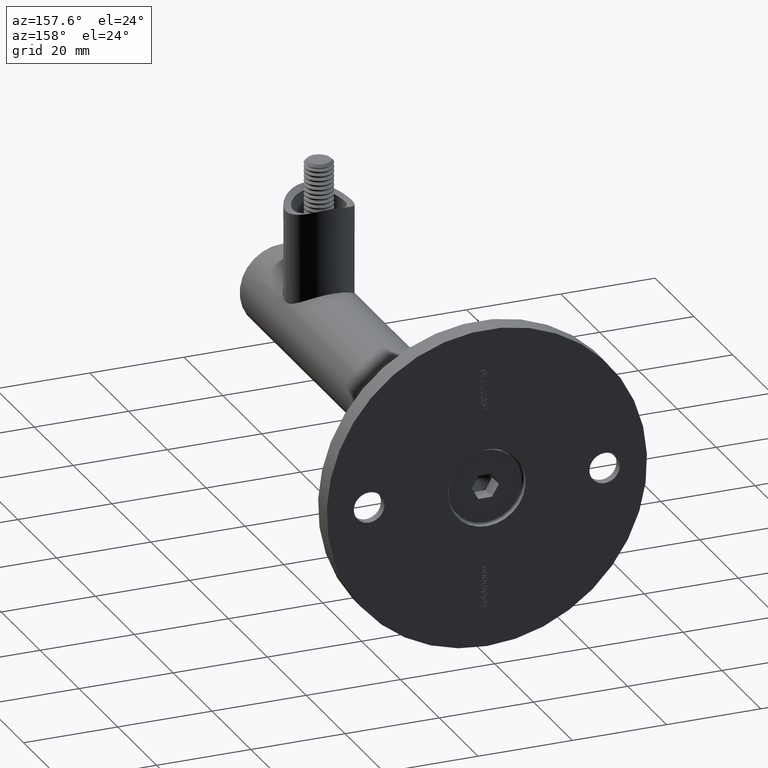
[diagram: clean part render]
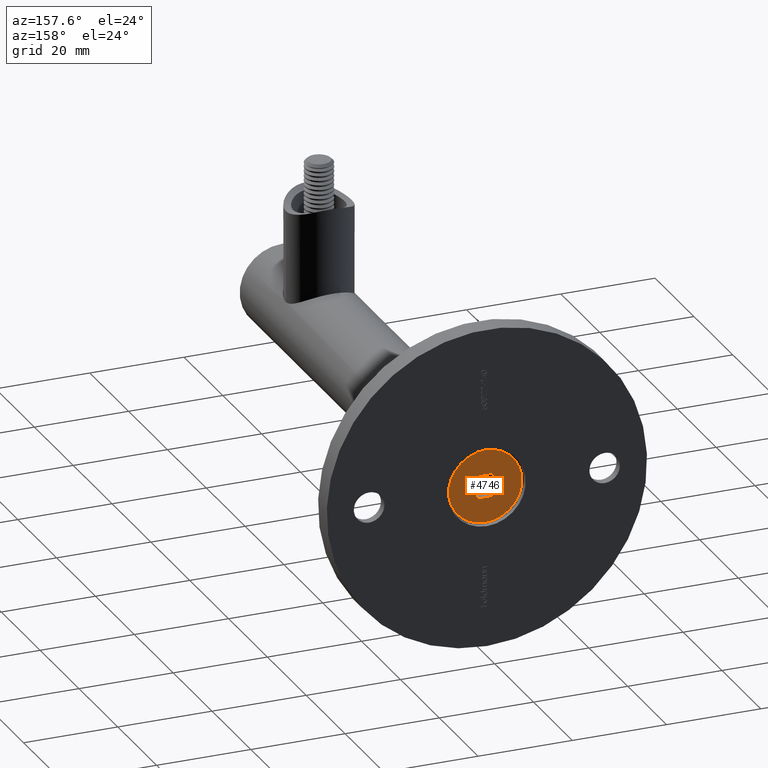
[diagram: same view with one face highlighted and labeled with its STEP entity id]
A machine part, auxiliary view. The second image highlights one B-rep face of the part: STEP entity #4746.
In plain terms, the highlighted planar face has unit normal (0, 1, 0).
Its self-contained STEP definition (entity closure, byte-faithful):
#225 = VECTOR ( 'NONE', #3804, 1000.000000000000000 ) ;
#311 = VECTOR ( 'NONE', #11622, 1000.000000000000100 ) ;
#343 = DIRECTION ( 'NONE',  ( 0.0000000000000000000, 1.000000000000000000, -1.496329281610716700E-016 ) ) ;
#442 = VERTEX_POINT ( 'NONE', #4790 ) ;
#935 = DIRECTION ( 'NONE',  ( 0.0000000000000000000, 0.5000000000000004400, 0.8660254037844383700 ) ) ;
#1268 = CARTESIAN_POINT ( 'NONE',  ( 0.0000000000000000000, -1.449149175665960000, 2.509999999999999800 ) ) ;
#1933 = AXIS2_PLACEMENT_3D ( 'NONE', #7152, #12914, #14419 ) ;
#2159 = CARTESIAN_POINT ( 'NONE',  ( 0.0000000000000000000, 2.898298351331923200, -2.491764672306793700E-016 ) ) ;
#2374 = CARTESIAN_POINT ( 'NONE',  ( 0.0000000000000000000, 0.0000000000000000000, 0.0000000000000000000 ) ) ;
#2508 = CARTESIAN_POINT ( 'NONE',  ( 0.0000000000000000000, -2.898298351331922300, 2.168404344971008900E-016 ) ) ;
#3587 = AXIS2_PLACEMENT_3D ( 'NONE', #2374, #12774, #4091 ) ;
#3804 = DIRECTION ( 'NONE',  ( 0.0000000000000000000, -1.000000000000000000, 1.496329281610716200E-016 ) ) ;
#4090 = LINE ( 'NONE', #8294, #225 ) ;
#4091 = DIRECTION ( 'NONE',  ( 0.0000000000000000000, 0.0000000000000000000, 1.000000000000000000 ) ) ;
#4743 = VECTOR ( 'NONE', #343, 1000.000000000000000 ) ;
#4746 = ADVANCED_FACE ( 'NONE', ( #17160, #16929 ), #14602, .T. ) ;
#4790 = CARTESIAN_POINT ( 'NONE',  ( 0.0000000000000000000, 0.0000000000000000000, 7.785000000000000100 ) ) ;
#5546 = DIRECTION ( 'NONE',  ( 0.0000000000000000000, -0.5000000000000005600, -0.8660254037844382600 ) ) ;
#5566 = CARTESIAN_POINT ( 'NONE',  ( 0.0000000000000000000, -2.898298351331922300, 2.011474462937074200E-017 ) ) ;
#5777 = EDGE_LOOP ( 'NONE', ( #17452 ) ) ;
#6115 = EDGE_CURVE ( 'NONE', #13734, #16136, #4090, .T. ) ;
#6616 = LINE ( 'NONE', #13258, #4743 ) ;
#6762 = LINE ( 'NONE', #16337, #18840 ) ;
#6835 = LINE ( 'NONE', #1268, #17766 ) ;
#7046 = ORIENTED_EDGE ( 'NONE', *, *, #6115, .T. ) ;
#7100 = ORIENTED_EDGE ( 'NONE', *, *, #7818, .T. ) ;
#7152 = CARTESIAN_POINT ( 'NONE',  ( 0.0000000000000000000, 0.0000000000000000000, 0.0000000000000000000 ) ) ;
#7461 = EDGE_CURVE ( 'NONE', #8187, #13933, #6616, .T. ) ;
#7636 = LINE ( 'NONE', #5566, #311 ) ;
#7818 = EDGE_CURVE ( 'NONE', #16136, #18855, #6835, .T. ) ;
#8187 = VERTEX_POINT ( 'NONE', #9615 ) ;
#8228 = CARTESIAN_POINT ( 'NONE',  ( 0.0000000000000000000, 1.449149175665961400, 2.509999999999999300 ) ) ;
#8294 = CARTESIAN_POINT ( 'NONE',  ( 0.0000000000000000000, 1.449149175665961400, 2.509999999999999300 ) ) ;
#9136 = ORIENTED_EDGE ( 'NONE', *, *, #7461, .T. ) ;
#9615 = CARTESIAN_POINT ( 'NONE',  ( -0.0000000000000000000, -1.449149175665959800, -2.509999999999999800 ) ) ;
#10617 = ORIENTED_EDGE ( 'NONE', *, *, #14288, .T. ) ;
#10651 = DIRECTION ( 'NONE',  ( 0.0000000000000000000, -0.5000000000000004400, 0.8660254037844383700 ) ) ;
#11570 = EDGE_CURVE ( 'NONE', #18855, #8187, #7636, .T. ) ;
#11622 = DIRECTION ( 'NONE',  ( -0.0000000000000000000, 0.5000000000000006700, -0.8660254037844382600 ) ) ;
#12571 = ORIENTED_EDGE ( 'NONE', *, *, #11570, .T. ) ;
#12676 = CIRCLE ( 'NONE', #3587, 7.785000000000000100 ) ;
#12774 = DIRECTION ( 'NONE',  ( -1.000000000000000000, -0.0000000000000000000, -0.0000000000000000000 ) ) ;
#12853 = EDGE_CURVE ( 'NONE', #442, #442, #12676, .T. ) ;
#12914 = DIRECTION ( 'NONE',  ( -1.000000000000000000, 0.0000000000000000000, -0.0000000000000000000 ) ) ;
#13258 = CARTESIAN_POINT ( 'NONE',  ( -0.0000000000000000000, -1.449149175665959800, -2.509999999999999800 ) ) ;
#13259 = VERTEX_POINT ( 'NONE', #2159 ) ;
#13304 = CARTESIAN_POINT ( 'NONE',  ( 0.0000000000000000000, -1.449149175665960000, 2.509999999999999800 ) ) ;
#13734 = VERTEX_POINT ( 'NONE', #8228 ) ;
#13933 = VERTEX_POINT ( 'NONE', #15932 ) ;
#14288 = EDGE_CURVE ( 'NONE', #13259, #13734, #6762, .T. ) ;
#14305 = VECTOR ( 'NONE', #935, 1000.000000000000100 ) ;
#14419 = DIRECTION ( 'NONE',  ( -0.0000000000000000000, 0.0000000000000000000, 1.000000000000000000 ) ) ;
#14602 = PLANE ( 'NONE',  #1933 ) ;
#14852 = ORIENTED_EDGE ( 'NONE', *, *, #14971, .T. ) ;
#14971 = EDGE_CURVE ( 'NONE', #13933, #13259, #17449, .T. ) ;
#15932 = CARTESIAN_POINT ( 'NONE',  ( 0.0000000000000000000, 1.449149175665961400, -2.510000000000000200 ) ) ;
#16136 = VERTEX_POINT ( 'NONE', #13304 ) ;
#16337 = CARTESIAN_POINT ( 'NONE',  ( 0.0000000000000000000, 2.898298351331923200, -2.491764672306793700E-016 ) ) ;
#16929 = FACE_BOUND ( 'NONE', #18114, .T. ) ;
#17160 = FACE_OUTER_BOUND ( 'NONE', #5777, .T. ) ;
#17449 = LINE ( 'NONE', #18235, #14305 ) ;
#17452 = ORIENTED_EDGE ( 'NONE', *, *, #12853, .T. ) ;
#17766 = VECTOR ( 'NONE', #5546, 1000.000000000000100 ) ;
#18114 = EDGE_LOOP ( 'NONE', ( #7100, #12571, #9136, #14852, #10617, #7046 ) ) ;
#18235 = CARTESIAN_POINT ( 'NONE',  ( 0.0000000000000000000, 1.449149175665961400, -2.510000000000000200 ) ) ;
#18840 = VECTOR ( 'NONE', #10651, 1000.000000000000100 ) ;
#18855 = VERTEX_POINT ( 'NONE', #2508 ) ;